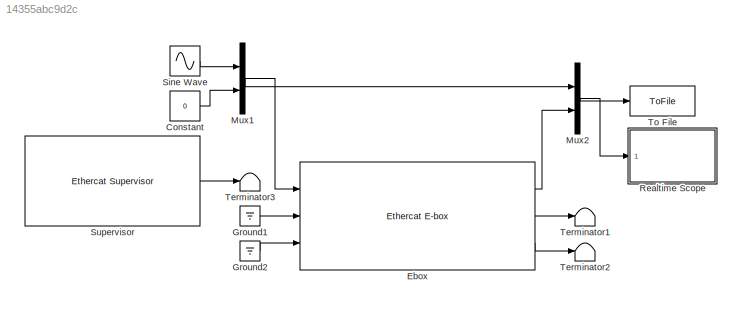
MODEL slx_14355abc9d2c
KIND model
CONFIG AbsTol = auto
CONFIG EnableMultiTasking = on
CONFIG FixedStep = Ts
CONFIG InitFcn = Fs = 4000; Ts = 1/Fs;tsim = 14.9998;
CONFIG MaxStep = auto
CONFIG MinStep = auto
CONFIG RelTol = 1e-3
CONFIG SampleTimeConstraint = Unconstrained
CONFIG SolverName = FixedStepDiscrete
CONFIG StartTime = 0.0
CONFIG StopTime = tsim
BLOCK [Constant] Constant
  Value = 0
BLOCK [Reference] Ebox  REF=sperte_lib/Ethercat E-box  (lib defined in slx_32fa897d258a)
  Ports = [3, 3]
  Priority = -2
  SourceBlock = sperte_lib/Ethercat E-box
  SourceProductName = SPERTE project library
  SourceType = Sperte Lib
  UserDataPersistent = on
BLOCK [Ground] Ground1
BLOCK [Ground] Ground2
BLOCK [Mux] Mux1
  DisplayOption = bar
  Inputs = 2
  Ports = [2, 1]
BLOCK [Mux] Mux2
  DisplayOption = bar
  Inputs = 2
  Ports = [2, 1]
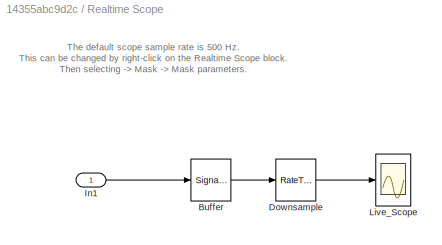
BLOCK [SubSystem] Realtime Scope
  CopyFcn = set_param(gcb,'LinkStatus','None')
  OpenFcn = open_system(strcat(get_param(gcb,'Parent'),'/',get_param(gcb,'Name'),'/Live_Scope'),'force');
  Ports = [1]
  Priority = 0
  RequestExecContextInheritance = off
  UserDataPersistent = on
BLOCK [SignalConversion] Realtime Scope/Buffer
  OverrideOpt = off
BLOCK [RateTransition] Realtime Scope/Downsample
  OutPortSampleTime = Sample_Time
BLOCK [Inport] Realtime Scope/In1
BLOCK [Scope] Realtime Scope/Live_Scope
  Floating = off
  NumInputPorts = 1
  Ports = [1]
  ScopeSpecificationString = Simulink.scopes.TimeScopeBlockCfg('CurrentConfiguration', extmgr.ConfigurationSet(extmgr.Configuration('Core','General UI',true),extmgr.Configuration('Core','Source UI',true),extmgr.Configuration('Sources','WiredSimulink',true),extmgr.Configuration('Visuals','Time Domain',true,'SerializedDisplays',{struct('MinYLimReal','-0.62602','MaxYLimReal','0.62522','YLabelReal','','MinYLimMag','0.00000','MaxY...<+1375ch>
BLOCK [Sin] Sine Wave
  Amplitude = 0.5
  Ports = [0, 1]
  SampleTime = Ts
  Samples = Fs
  SineType = Sample based
BLOCK [Reference] Supervisor  REF=sperte_lib/Ethercat Supervisor  (lib defined in slx_32fa897d258a)
  Description = Must be executed first, keep at -1 priority (highest)
  Ports = [0, 1]
  Priority = -3
  SourceBlock = sperte_lib/Ethercat Supervisor
  SourceProductName = SPERTE project library
  SourceType = Sperte Lib
  UserDataPersistent = on
BLOCK [Terminator] Terminator1
BLOCK [Terminator] Terminator2
BLOCK [Terminator] Terminator3
BLOCK [ToFile] To File
  Filename = filescope.mat
  MatrixName = log
  Ports = [1]
ANNOTATION Realtime Scope: The default scope sample rate is 500 Hz. This can be changed by right-click on the Realtime Scope block. Then selecting -> Mask -> Mask parameters.
LINE Constant:1 -> Mux1:2
LINE Ebox:1 -> Mux2:2
LINE Ebox:2 -> Terminator1:1
LINE Ebox:3 -> Terminator2:1
LINE Ground1:1 -> Ebox:2
LINE Ground2:1 -> Ebox:3
NET Mux1:1 -> Ebox:1, Mux2:1
NET Mux2:1 -> Realtime Scope:1, To File:1
LINE Realtime Scope/Buffer:1 -> Realtime Scope/Downsample:1
LINE Realtime Scope/Downsample:1 -> Realtime Scope/Live_Scope:1
LINE Realtime Scope/In1:1 -> Realtime Scope/Buffer:1
LINE Sine Wave:1 -> Mux1:1
LINE Supervisor:1 -> Terminator3:1
note: NET lines group one-source signal fan-out (src -> all destinations, sorted); 1:1 wires keep LINE
